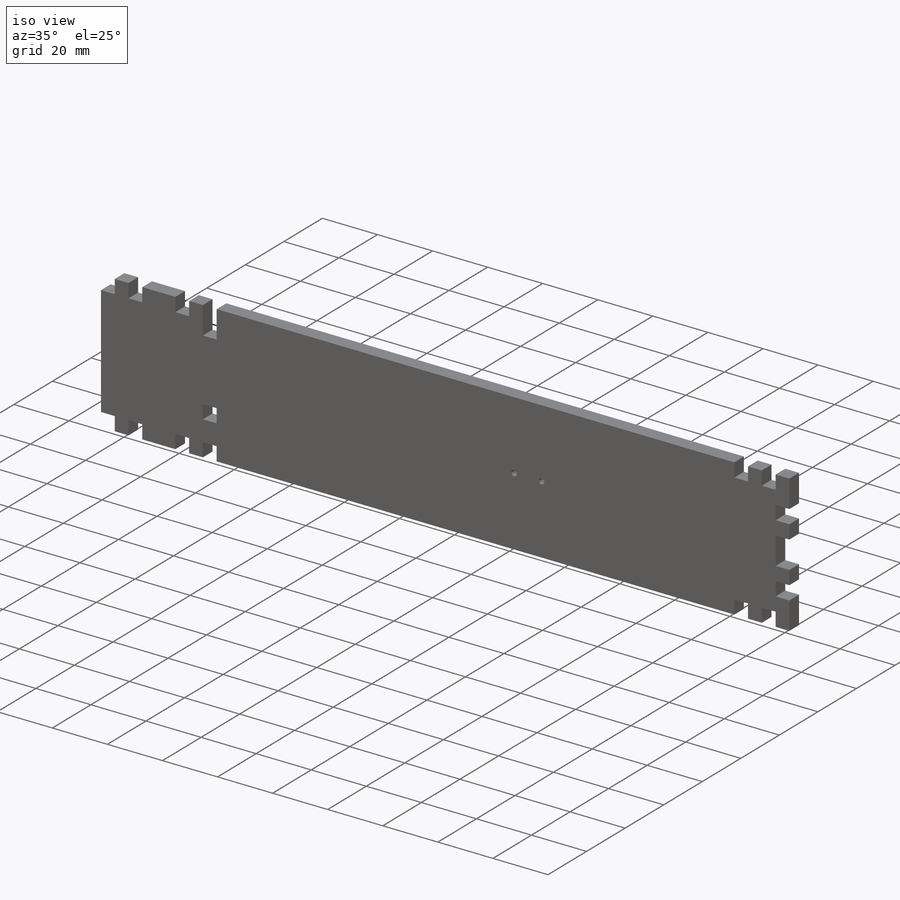
[diagram: iso view]
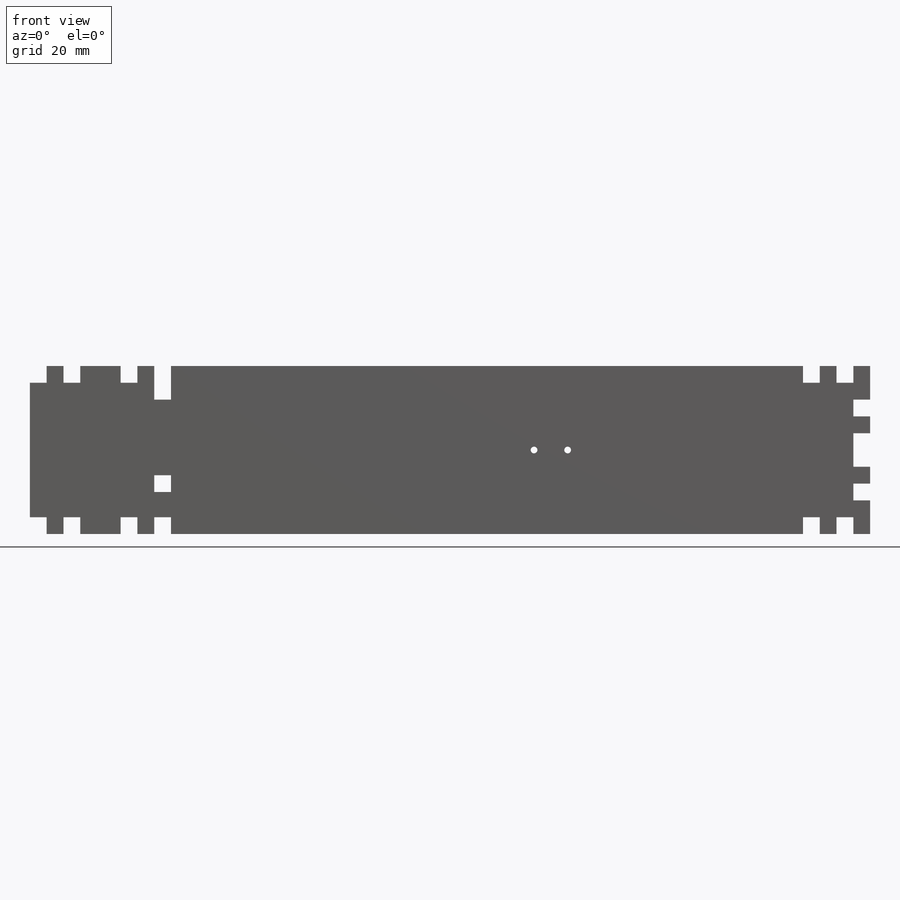
[diagram: front view]
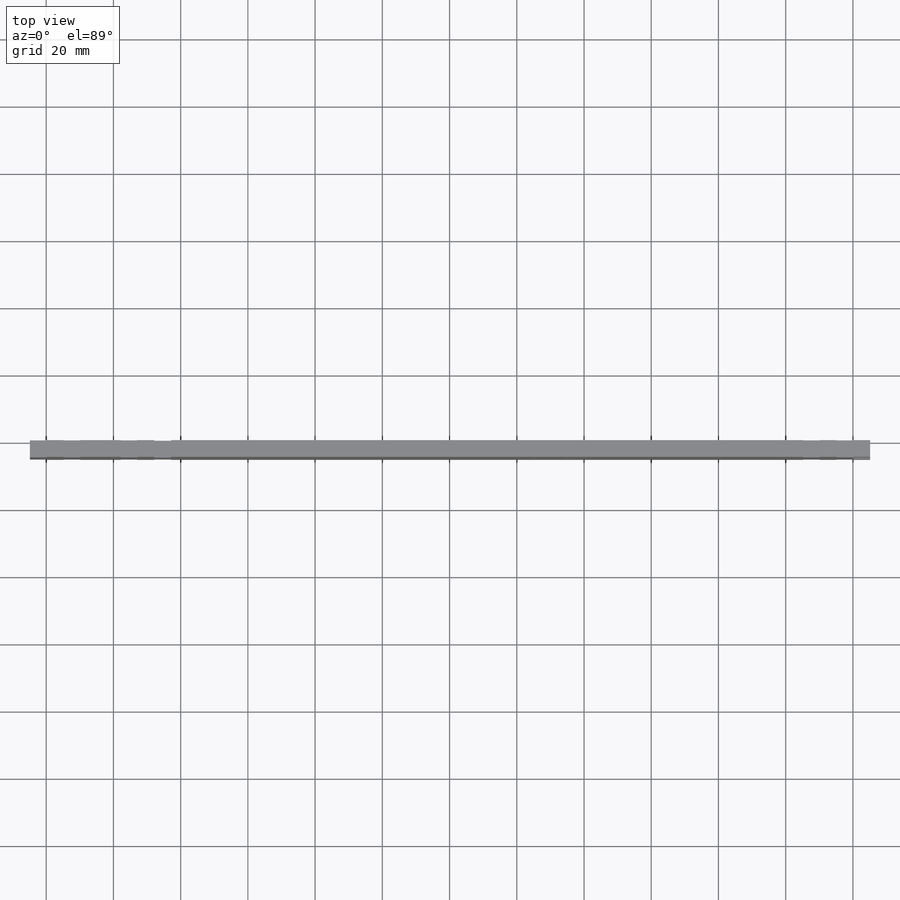
[diagram: top view]
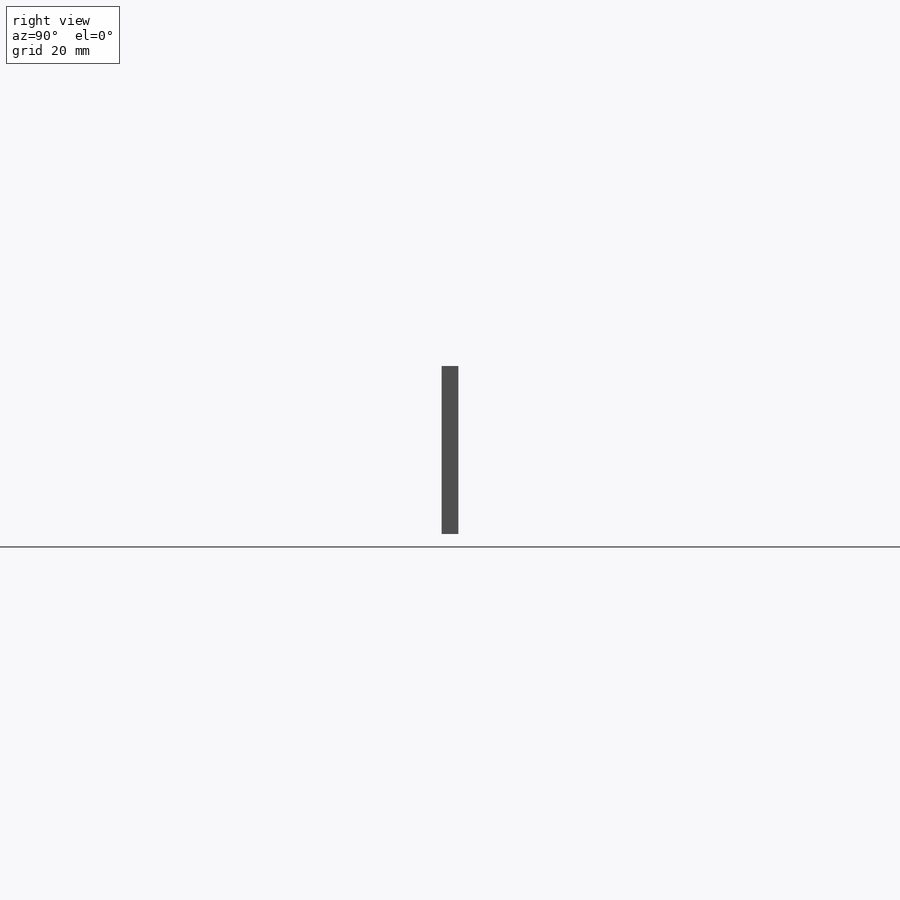
[diagram: right view]
SOLIDWORKS PART (.sldprt)
format: sldprt  version: not decoded by parser v0  size: 458,240 bytes
history: native  units: mm
features: plane x4, sketch x3, cut_extrude x2, material x1, extrude x1, mirror x1 (+10 scaffold rows collapsed)
feature tree (22):
  scaffold x10  (default folders/planes/origin — collapsed)
  material  "Matériau <non spécifié>"
  plane  "Plan de face"
  plane  "Plan de dessus"
  plane  "Plan de droite"
  sketch  "Esquisse1"  dims[D1=25.0mm]
  extrude  "Boss.-Extru.1"  Depth=5mm
  sketch  "Esquisse2"  dims[c1.D1=100.0mm c1.D2=20.0mm c1.D3=5.0mm c1.D4=2.5mm c1.D8=5.0mm c1.D10=5.0mm c1.D11=5.0mm c1.D12=7.5mm c1.D7=42.0mm c2.D10=5.0mm c2.D11=5.0mm c2.D12=15.0mm c2.D13=11.0mm c2.D7=5.0mm c2.D4=5.0mm c3.D7=5.0mm c3.D12=5.0mm c3.D13=10.0mm c3.D2=10.0mm c3.D5=2.0 c3.D6=2.0 c3.D9=2.0]
  cut_extrude  "Enlèv. mat.-Extru.1"  [1 undecoded]
  plane  "Plan1"
  mirror  "Symétrie1"
  sketch  "Esquisse3"  dims[D1=5.0mm D2=5.0mm D3=12.5mm D4=5.0mm D5=5.0mm D6=0.0mm]
  cut_extrude  "Enlèv. mat.-Extru.14"  Depth=5mm
decode coverage: 5 of 7 modeling features carry decoded parameters
note: 1 parameter value undecoded
note: suppression state not decoded; provenance and decode notes live in map.json
